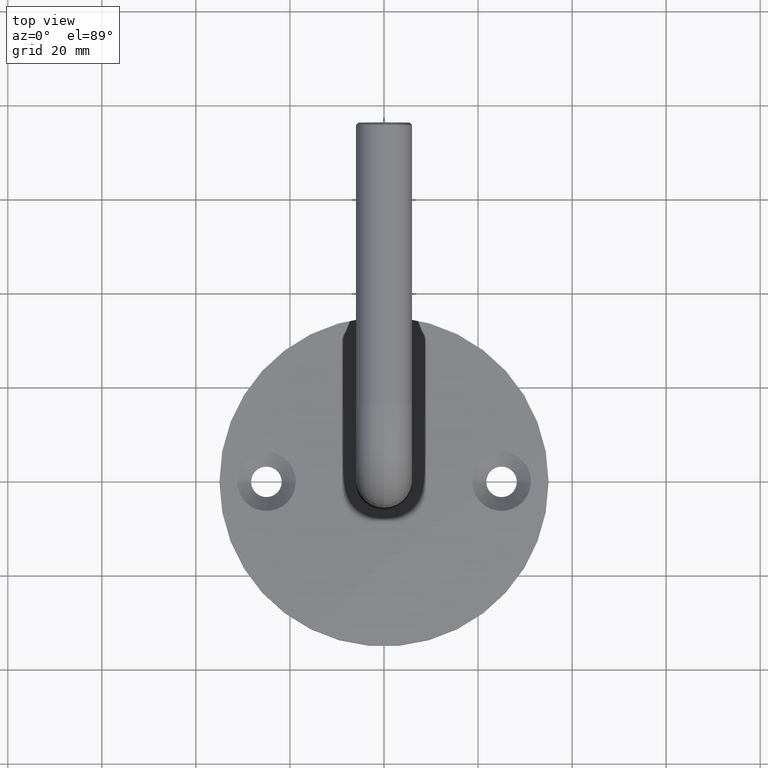
[diagram: clean part render]
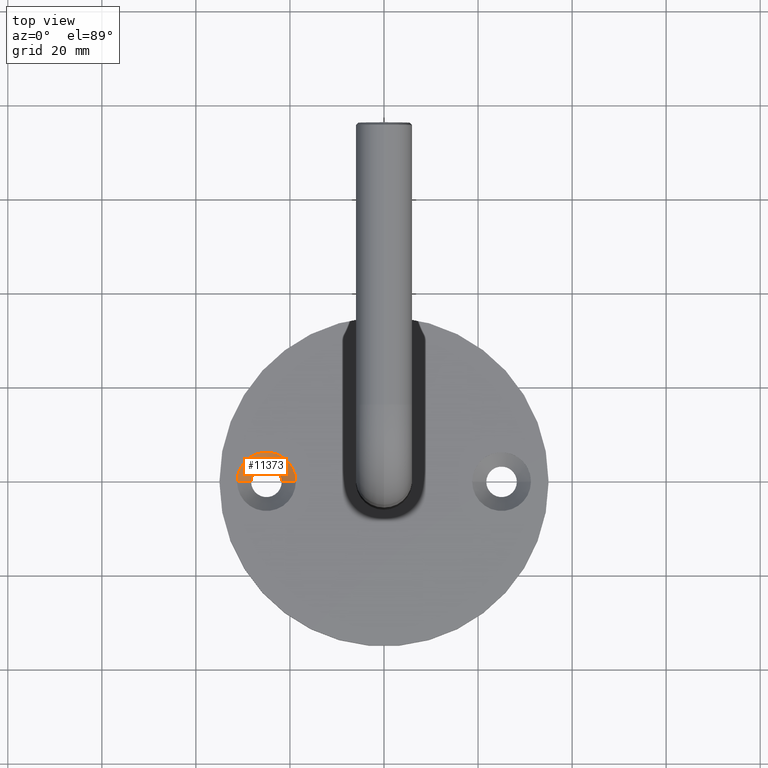
[diagram: same view with one face highlighted and labeled with its STEP entity id]
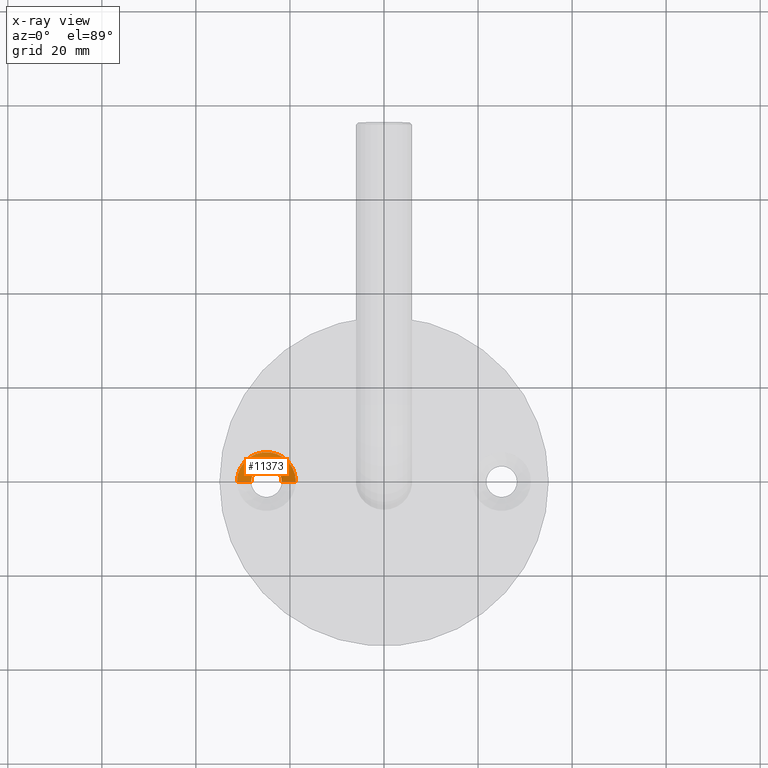
[diagram: x-ray of the same camera — body ghosted, the highlighted face saturated]
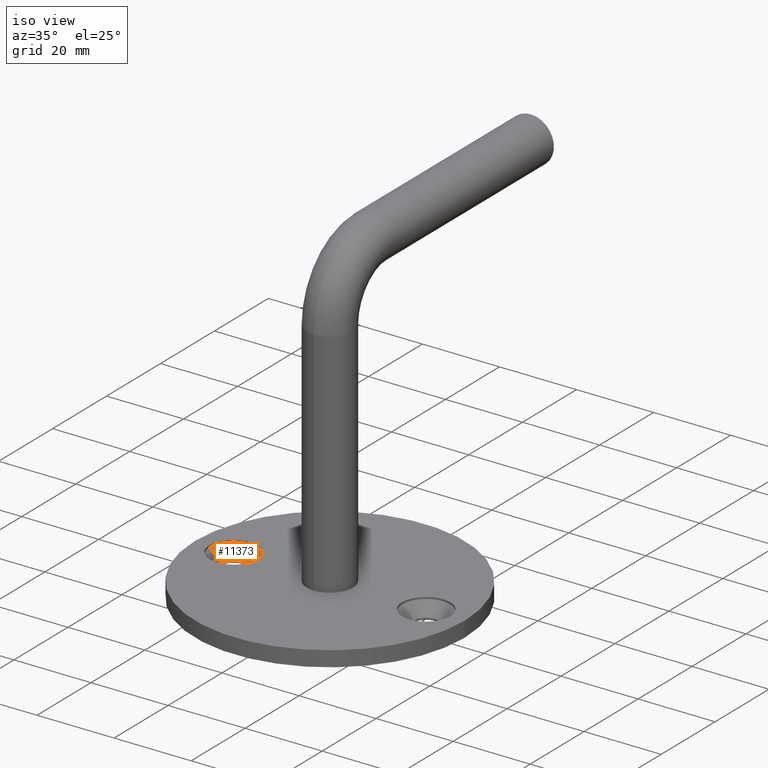
[diagram: same view with one face highlighted and labeled with its STEP entity id]
A machine part, top view. The second image highlights one B-rep face of the part: STEP entity #11373.
The next image is the same camera in x-ray: the body ghosted, the highlighted face saturated — about 0% of this face is hidden behind the body in this view.
A second angle (iso view) of the same face is appended — the face is thin or edge-on in the first view.
In plain terms, the highlighted conical surface has half-angle 45 deg.
Its self-contained STEP definition (entity closure, byte-faithful):
#236 = AXIS2_PLACEMENT_3D ( 'NONE', #4006, #5481, #6960 ) ;
#1006 = CIRCLE ( 'NONE', #10998, 3.249999999999999556 ) ;
#1369 = LINE ( 'NONE', #17322, #4992 ) ;
#2100 = DIRECTION ( 'NONE',  ( 0.7071067811865474617, 0.000000000000000000, 0.7071067811865474617 ) ) ;
#2293 = VECTOR ( 'NONE', #2100, 1000.000000000000114 ) ;
#2584 = AXIS2_PLACEMENT_3D ( 'NONE', #18563, #11232, #8290 ) ;
#3052 = CARTESIAN_POINT ( 'NONE',  ( -18.75000000000000355, -3.061616997868140813E-17, 3.499999999999999556 ) ) ;
#3773 = ORIENTED_EDGE ( 'NONE', *, *, #18646, .F. ) ;
#4006 = CARTESIAN_POINT ( 'NONE',  ( -25.00000000000000000, -3.061616997868140813E-17, 3.499999999999999556 ) ) ;
#4010 = EDGE_LOOP ( 'NONE', ( #3773, #7803, #18141, #7002 ) ) ;
#4805 = CARTESIAN_POINT ( 'NONE',  ( -21.75000000000000355, 3.673940397442084520E-16, 0.5000000000000004441 ) ) ;
#4992 = VECTOR ( 'NONE', #8541, 1000.000000000000114 ) ;
#5481 = DIRECTION ( 'NONE',  ( -0.000000000000000000, -0.000000000000000000, 1.000000000000000000 ) ) ;
#5747 = CARTESIAN_POINT ( 'NONE',  ( -25.00000000000000000, -3.061616997868140813E-17, 0.5000000000000004441 ) ) ;
#6310 = CONICAL_SURFACE ( 'NONE', #2584, 6.249999999999998224, 0.7853981633974482790 ) ;
#6460 = VERTEX_POINT ( 'NONE', #15038 ) ;
#6960 = DIRECTION ( 'NONE',  ( 1.000000000000000000, 0.000000000000000000, 0.000000000000000000 ) ) ;
#7002 = ORIENTED_EDGE ( 'NONE', *, *, #7598, .T. ) ;
#7415 = CARTESIAN_POINT ( 'NONE',  ( -18.75000000000000355, -3.061616997868140813E-17, 3.499999999999999556 ) ) ;
#7598 = EDGE_CURVE ( 'NONE', #17457, #6460, #13722, .T. ) ;
#7757 = EDGE_CURVE ( 'NONE', #11713, #17457, #14645, .T. ) ;
#7803 = ORIENTED_EDGE ( 'NONE', *, *, #14340, .F. ) ;
#8290 = DIRECTION ( 'NONE',  ( 1.000000000000000000, 0.000000000000000000, 0.000000000000000000 ) ) ;
#8541 = DIRECTION ( 'NONE',  ( -0.7071067811865474617, 8.659560562354932858E-17, 0.7071067811865474617 ) ) ;
#10998 = AXIS2_PLACEMENT_3D ( 'NONE', #5747, #11779, #17730 ) ;
#11232 = DIRECTION ( 'NONE',  ( -0.000000000000000000, -0.000000000000000000, 1.000000000000000000 ) ) ;
#11373 = ADVANCED_FACE ( 'NONE', ( #17103 ), #6310, .F. ) ;
#11713 = VERTEX_POINT ( 'NONE', #4805 ) ;
#11779 = DIRECTION ( 'NONE',  ( -0.000000000000000000, -0.000000000000000000, 1.000000000000000000 ) ) ;
#13535 = CARTESIAN_POINT ( 'NONE',  ( -28.25000000000000000, -3.061616997868140813E-17, 0.5000000000000004441 ) ) ;
#13722 = CIRCLE ( 'NONE', #236, 6.249999999999998224 ) ;
#14340 = EDGE_CURVE ( 'NONE', #11713, #15647, #1006, .T. ) ;
#14645 = LINE ( 'NONE', #7415, #2293 ) ;
#15038 = CARTESIAN_POINT ( 'NONE',  ( -31.25000000000000000, 7.347880794884141430E-16, 3.499999999999999556 ) ) ;
#15647 = VERTEX_POINT ( 'NONE', #13535 ) ;
#17103 = FACE_OUTER_BOUND ( 'NONE', #4010, .T. ) ;
#17322 = CARTESIAN_POINT ( 'NONE',  ( -31.25000000000000000, 7.347880794884141430E-16, 3.499999999999999556 ) ) ;
#17457 = VERTEX_POINT ( 'NONE', #3052 ) ;
#17730 = DIRECTION ( 'NONE',  ( 1.000000000000000000, 0.000000000000000000, 0.000000000000000000 ) ) ;
#18141 = ORIENTED_EDGE ( 'NONE', *, *, #7757, .T. ) ;
#18563 = CARTESIAN_POINT ( 'NONE',  ( -25.00000000000000000, -3.061616997868140813E-17, 3.499999999999999556 ) ) ;
#18646 = EDGE_CURVE ( 'NONE', #15647, #6460, #1369, .T. ) ;